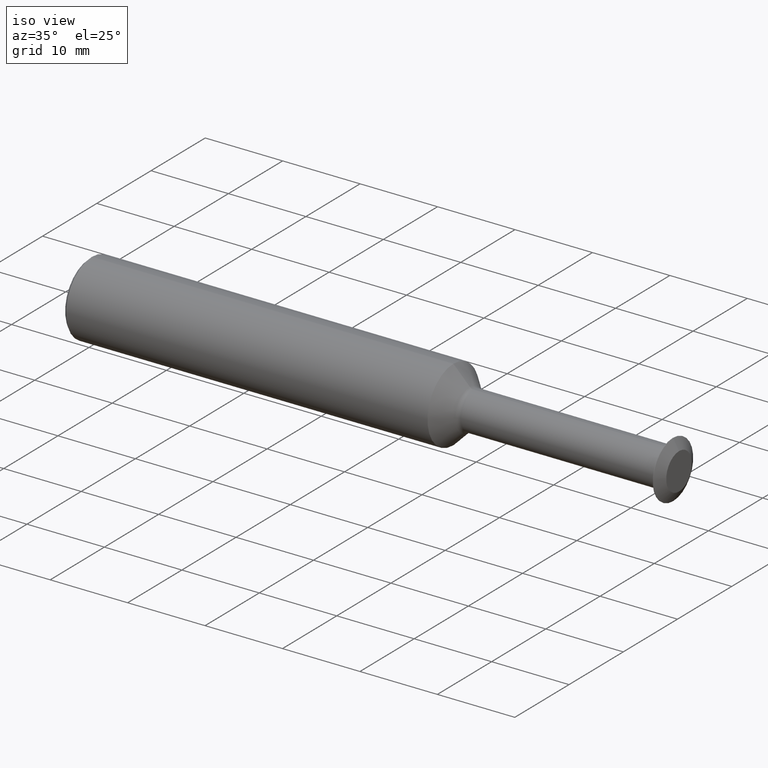
[diagram: clean part render]
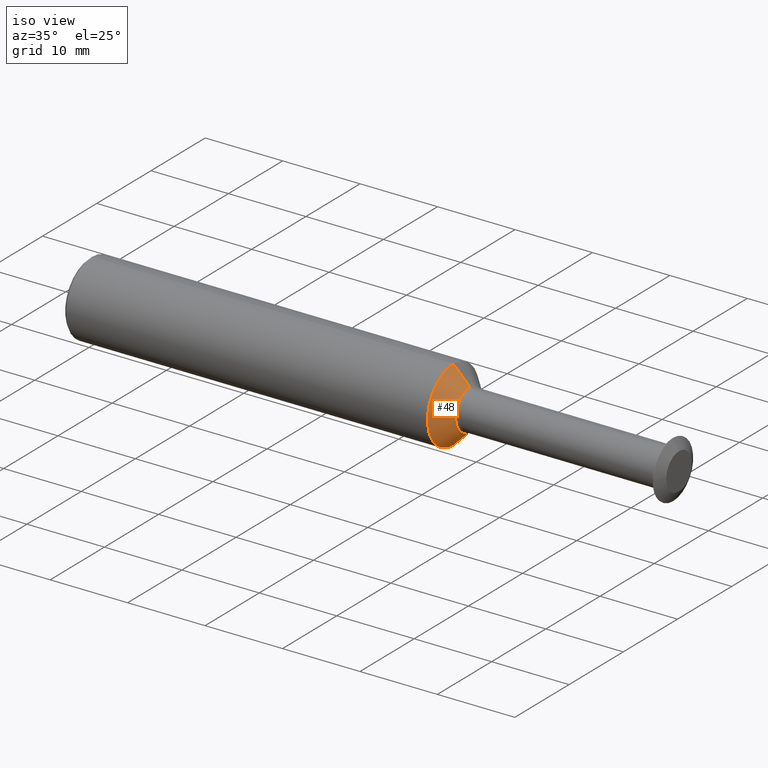
[diagram: same view with one face highlighted and labeled with its STEP entity id]
A machine part, iso view. The second image highlights one B-rep face of the part: STEP entity #48.
In plain terms, the highlighted conical surface has half-angle 45 deg.
Its self-contained STEP definition (entity closure, byte-faithful):
#33 = AXIS2_PLACEMENT_3D ( 'NONE', #382, #208, #499 ) ;
#48 = ADVANCED_FACE ( 'NONE', ( #225 ), #331, .T. ) ;
#54 = VECTOR ( 'NONE', #377, 39.37007874015748143 ) ;
#65 = EDGE_CURVE ( 'NONE', #270, #390, #258, .T. ) ;
#68 = VERTEX_POINT ( 'NONE', #348 ) ;
#76 = DIRECTION ( 'NONE',  ( -1.000000000000000000, -0.0000000000000000000, -0.0000000000000000000 ) ) ;
#78 = CARTESIAN_POINT ( 'NONE',  ( 1.936586696242840633, 0.0000000000000000000, 0.1033223304703363571 ) ) ;
#80 = DIRECTION ( 'NONE',  ( -1.000000000000000000, -0.0000000000000000000, -0.0000000000000000000 ) ) ;
#82 = DIRECTION ( 'NONE',  ( 0.0000000000000000000, 0.0000000000000000000, 1.000000000000000000 ) ) ;
#89 = CARTESIAN_POINT ( 'NONE',  ( 1.936586696242840633, 0.0000000000000000000, 0.1033223304703363571 ) ) ;
#97 = DIRECTION ( 'NONE',  ( 0.0000000000000000000, 0.0000000000000000000, 1.000000000000000000 ) ) ;
#103 = VERTEX_POINT ( 'NONE', #437 ) ;
#117 = ORIENTED_EDGE ( 'NONE', *, *, #65, .T. ) ;
#120 = EDGE_CURVE ( 'NONE', #390, #103, #277, .T. ) ;
#133 = ORIENTED_EDGE ( 'NONE', *, *, #159, .F. ) ;
#138 = CARTESIAN_POINT ( 'NONE',  ( 1.936586696242840633, 1.265333612909424414E-17, -0.1033223304703363571 ) ) ;
#151 = AXIS2_PLACEMENT_3D ( 'NONE', #491, #80, #97 ) ;
#159 = EDGE_CURVE ( 'NONE', #270, #68, #419, .T. ) ;
#188 = DIRECTION ( 'NONE',  ( -0.7071067811865454633, 0.0000000000000000000, 0.7071067811865495711 ) ) ;
#198 = ORIENTED_EDGE ( 'NONE', *, *, #120, .T. ) ;
#208 = DIRECTION ( 'NONE',  ( -1.000000000000000000, -0.0000000000000000000, -0.0000000000000000000 ) ) ;
#222 = CIRCLE ( 'NONE', #151, 0.1873499999999999888 ) ;
#225 = FACE_OUTER_BOUND ( 'NONE', #466, .T. ) ;
#255 = CARTESIAN_POINT ( 'NONE',  ( 1.936586696242840633, 0.0000000000000000000, 0.0000000000000000000 ) ) ;
#258 = CIRCLE ( 'NONE', #292, 0.1033223304703363571 ) ;
#270 = VERTEX_POINT ( 'NONE', #138 ) ;
#277 = LINE ( 'NONE', #89, #311 ) ;
#292 = AXIS2_PLACEMENT_3D ( 'NONE', #255, #76, #82 ) ;
#311 = VECTOR ( 'NONE', #188, 39.37007874015748143 ) ;
#331 = CONICAL_SURFACE ( 'NONE', #33, 0.1033223304703363571, 0.7853981633974511656 ) ;
#348 = CARTESIAN_POINT ( 'NONE',  ( 1.852559026713177293, 2.294375778202565714E-17, -0.1873499999999999888 ) ) ;
#377 = DIRECTION ( 'NONE',  ( -0.7071067811865454633, 8.659560562354957510E-17, -0.7071067811865495711 ) ) ;
#382 = CARTESIAN_POINT ( 'NONE',  ( 1.936586696242840633, 0.0000000000000000000, 0.0000000000000000000 ) ) ;
#390 = VERTEX_POINT ( 'NONE', #78 ) ;
#400 = CARTESIAN_POINT ( 'NONE',  ( 1.936586696242840633, 1.265333612909424568E-17, -0.1033223304703363571 ) ) ;
#419 = LINE ( 'NONE', #400, #54 ) ;
#420 = EDGE_CURVE ( 'NONE', #68, #103, #222, .T. ) ;
#437 = CARTESIAN_POINT ( 'NONE',  ( 1.852559026713177293, 0.0000000000000000000, 0.1873499999999999888 ) ) ;
#444 = ORIENTED_EDGE ( 'NONE', *, *, #420, .F. ) ;
#466 = EDGE_LOOP ( 'NONE', ( #133, #117, #198, #444 ) ) ;
#491 = CARTESIAN_POINT ( 'NONE',  ( 1.852559026713177293, 0.0000000000000000000, 0.0000000000000000000 ) ) ;
#499 = DIRECTION ( 'NONE',  ( 0.0000000000000000000, 0.0000000000000000000, 1.000000000000000000 ) ) ;